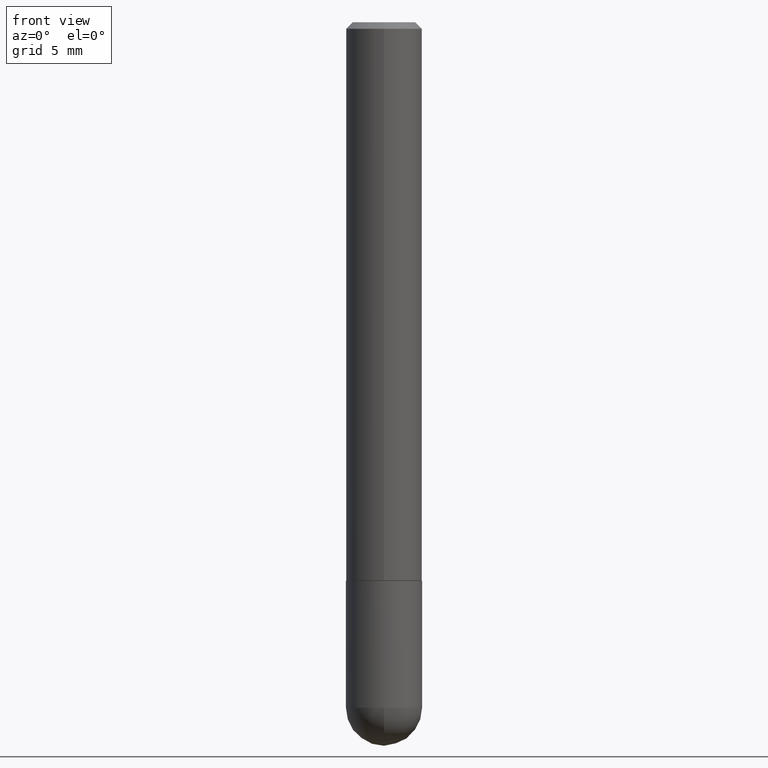
[diagram: clean part render]
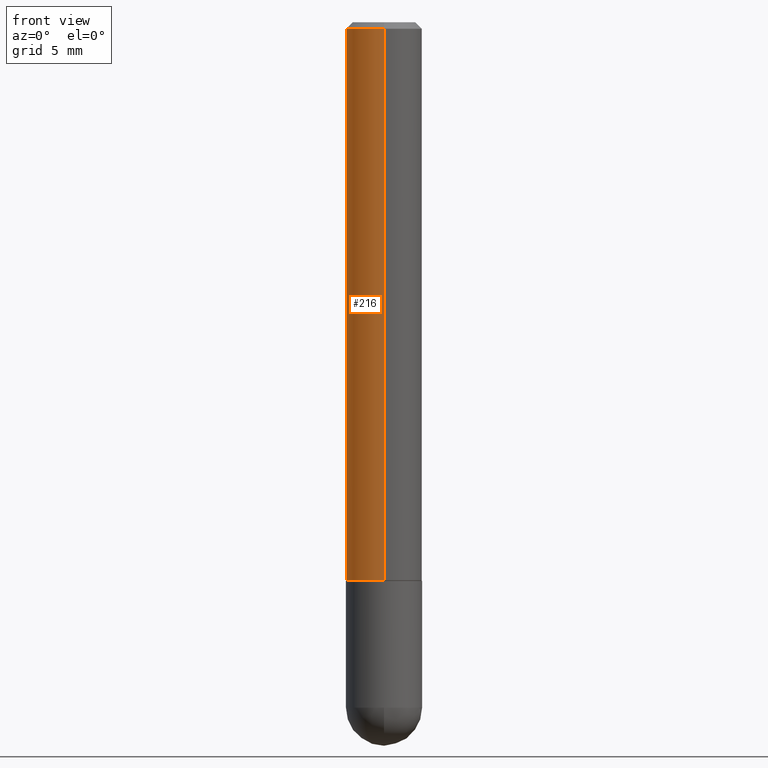
[diagram: same view with one face highlighted and labeled with its STEP entity id]
A machine part, front view. The second image highlights one B-rep face of the part: STEP entity #216.
In plain terms, the highlighted cylindrical surface (partial cylindrical patch) has radius 2.9997 mm, axis along (-0, 0, 1).
Its self-contained STEP definition (entity closure, byte-faithful):
#4 = ORIENTED_EDGE ( 'NONE', *, *, #61, .T. ) ;
#18 = CARTESIAN_POINT ( 'NONE',  ( 8.246878922347484598E-16, 0.1180999999999999273, -0.02000000000000044104 ) ) ;
#23 = VERTEX_POINT ( 'NONE', #285 ) ;
#27 = VERTEX_POINT ( 'NONE', #391 ) ;
#49 = DIRECTION ( 'NONE',  ( -2.445188344809910911E-29, 3.491882975495338888E-15, 1.000000000000000000 ) ) ;
#61 = EDGE_CURVE ( 'NONE', #27, #116, #101, .T. ) ;
#80 = CIRCLE ( 'NONE', #316, 0.1180999999999999966 ) ;
#101 = LINE ( 'NONE', #229, #217 ) ;
#106 = CYLINDRICAL_SURFACE ( 'NONE', #330, 0.1181000000000001077 ) ;
#116 = VERTEX_POINT ( 'NONE', #168 ) ;
#121 = VERTEX_POINT ( 'NONE', #18 ) ;
#149 = VECTOR ( 'NONE', #367, 39.37007874015748143 ) ;
#168 = CARTESIAN_POINT ( 'NONE',  ( -8.102248135368172434E-16, -0.1181000000000000660, -0.01999999999999961184 ) ) ;
#172 = EDGE_CURVE ( 'NONE', #23, #121, #268, .T. ) ;
#175 = EDGE_LOOP ( 'NONE', ( #318, #228, #4, #312 ) ) ;
#202 = CARTESIAN_POINT ( 'NONE',  ( 4.890376689619828269E-31, -6.983765950990686946E-17, -0.02000000000000002470 ) ) ;
#216 = ADVANCED_FACE ( 'NONE', ( #399 ), #106, .T. ) ;
#217 = VECTOR ( 'NONE', #297, 39.37007874015748143 ) ;
#228 = ORIENTED_EDGE ( 'NONE', *, *, #339, .T. ) ;
#229 = CARTESIAN_POINT ( 'NONE',  ( -8.246878922347486570E-16, -0.1181000000000001077, 4.123913794059998964E-16 ) ) ;
#234 = DIRECTION ( 'NONE',  ( -2.445188344809910911E-29, 3.491882975495338888E-15, 1.000000000000000000 ) ) ;
#244 = DIRECTION ( 'NONE',  ( -6.982962677686265922E-15, -1.000000000000000000, 4.626330217890361448E-15 ) ) ;
#266 = DIRECTION ( 'NONE',  ( -6.982962677686265133E-15, -1.000000000000000000, 3.491882975495338888E-15 ) ) ;
#268 = LINE ( 'NONE', #299, #149 ) ;
#280 = EDGE_CURVE ( 'NONE', #121, #116, #80, .T. ) ;
#285 = CARTESIAN_POINT ( 'NONE',  ( 8.391509709327007782E-16, 0.1180999999999941541, -1.731300000000000727 ) ) ;
#287 = AXIS2_PLACEMENT_3D ( 'NONE', #373, #374, #244 ) ;
#297 = DIRECTION ( 'NONE',  ( -2.445188344809910911E-29, 3.491882975495338493E-15, 1.000000000000000000 ) ) ;
#299 = CARTESIAN_POINT ( 'NONE',  ( 8.391509709326788873E-16, 0.1181000000000001077, -4.123913794059998964E-16 ) ) ;
#312 = ORIENTED_EDGE ( 'NONE', *, *, #280, .F. ) ;
#316 = AXIS2_PLACEMENT_3D ( 'NONE', #202, #49, #392 ) ;
#318 = ORIENTED_EDGE ( 'NONE', *, *, #172, .F. ) ;
#329 = CARTESIAN_POINT ( 'NONE',  ( 0.000000000000000000, 0.000000000000000000, 0.000000000000000000 ) ) ;
#330 = AXIS2_PLACEMENT_3D ( 'NONE', #329, #234, #266 ) ;
#337 = CIRCLE ( 'NONE', #287, 0.1181000000000002048 ) ;
#339 = EDGE_CURVE ( 'NONE', #23, #27, #337, .T. ) ;
#367 = DIRECTION ( 'NONE',  ( -2.445188344809910911E-29, 3.491882975495338493E-15, 1.000000000000000000 ) ) ;
#373 = CARTESIAN_POINT ( 'NONE',  ( 4.233354581369399407E-29, -6.045496995475080309E-15, -1.731300000000000283 ) ) ;
#374 = DIRECTION ( 'NONE',  ( -2.445188344809910911E-29, 3.491882975495338888E-15, 1.000000000000000000 ) ) ;
#391 = CARTESIAN_POINT ( 'NONE',  ( -8.246878922347070446E-16, -0.1181000000000062417, -1.731299999999999617 ) ) ;
#392 = DIRECTION ( 'NONE',  ( -6.982962677686265922E-15, -1.000000000000000000, 3.505890868245046092E-15 ) ) ;
#399 = FACE_OUTER_BOUND ( 'NONE', #175, .T. ) ;